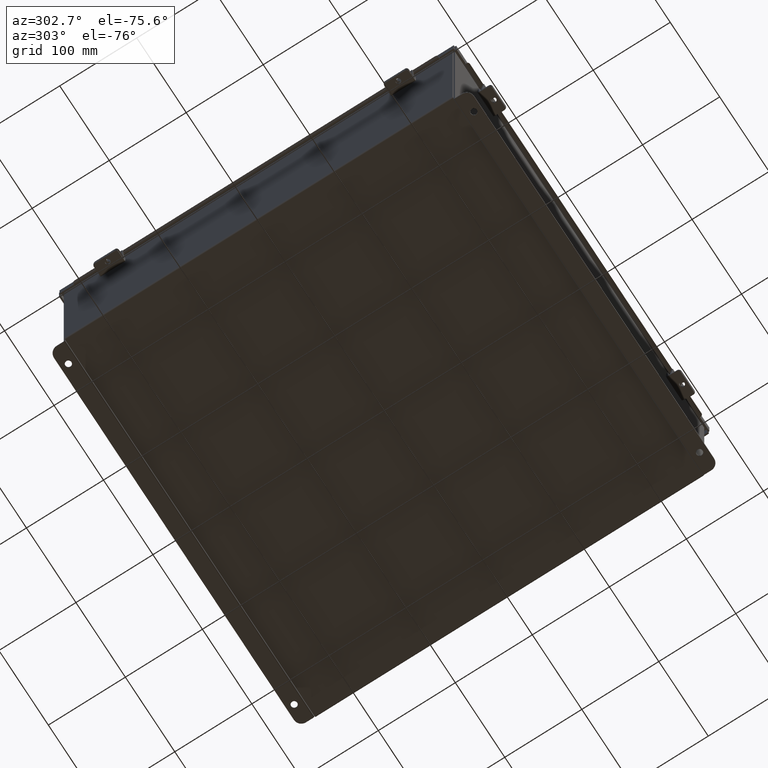
[diagram: clean part render]
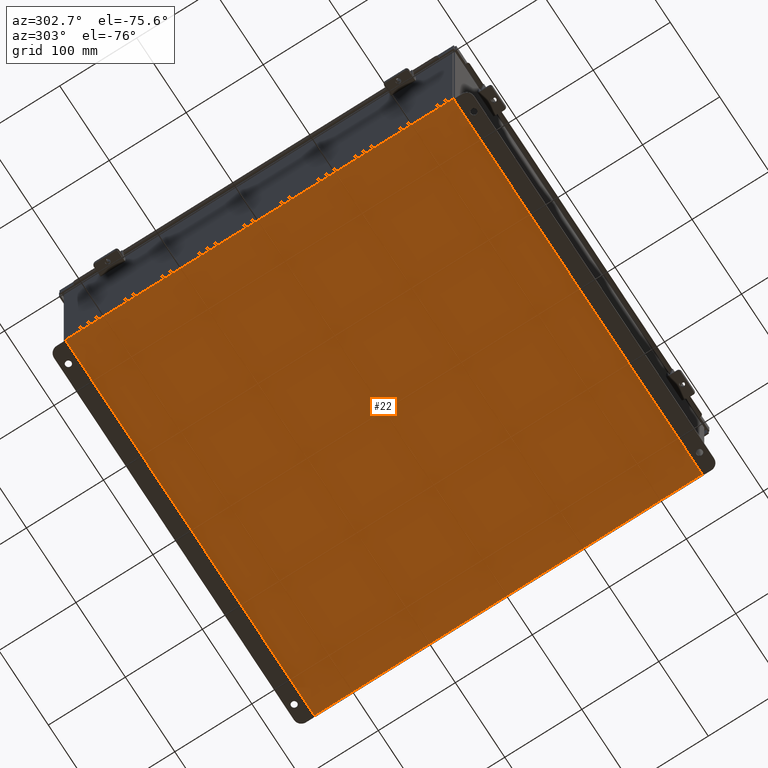
[diagram: same view with one face highlighted and labeled with its STEP entity id]
A machine part, auxiliary view. The second image highlights one B-rep face of the part: STEP entity #22.
In plain terms, the highlighted planar face has unit normal (0, 0, -1).
Its self-contained STEP definition (entity closure, byte-faithful):
#22 = ADVANCED_FACE ( 'NONE', ( #6597 ), #382, .T. ) ;
#375 = DIRECTION ( 'NONE',  ( -1.000000000000000000, -0.0000000000000000000, -0.0000000000000000000 ) ) ;
#382 = PLANE ( 'NONE',  #9697 ) ;
#411 = CARTESIAN_POINT ( 'NONE',  ( 9.912300000000001900, 9.925300000000001800, -0.07469999999999994700 ) ) ;
#457 = EDGE_CURVE ( 'NONE', #9458, #4602, #3333, .T. ) ;
#689 = DIRECTION ( 'NONE',  ( 0.0000000000000000000, 0.0000000000000000000, -1.000000000000000000 ) ) ;
#801 = EDGE_CURVE ( 'NONE', #9458, #4887, #6002, .T. ) ;
#1227 = CARTESIAN_POINT ( 'NONE',  ( -9.912299999999998300, -9.925299999999992900, -0.07469999999999994700 ) ) ;
#1737 = ORIENTED_EDGE ( 'NONE', *, *, #4054, .F. ) ;
#2460 = ORIENTED_EDGE ( 'NONE', *, *, #457, .T. ) ;
#3333 = LINE ( 'NONE', #3560, #4439 ) ;
#3560 = CARTESIAN_POINT ( 'NONE',  ( -9.912299999999998300, -9.925299999999998200, -0.07469999999999994700 ) ) ;
#3820 = ORIENTED_EDGE ( 'NONE', *, *, #801, .F. ) ;
#4054 = EDGE_CURVE ( 'NONE', #4187, #4602, #5068, .T. ) ;
#4173 = DIRECTION ( 'NONE',  ( 1.000000000000000000, 0.0000000000000000000, 0.0000000000000000000 ) ) ;
#4187 = VERTEX_POINT ( 'NONE', #8298 ) ;
#4313 = EDGE_CURVE ( 'NONE', #4187, #4887, #9565, .T. ) ;
#4439 = VECTOR ( 'NONE', #9403, 39.37007874015748100 ) ;
#4440 = DIRECTION ( 'NONE',  ( -0.0000000000000000000, -1.000000000000000000, -0.0000000000000000000 ) ) ;
#4514 = EDGE_LOOP ( 'NONE', ( #1737, #5165, #3820, #2460 ) ) ;
#4602 = VERTEX_POINT ( 'NONE', #6740 ) ;
#4833 = CARTESIAN_POINT ( 'NONE',  ( -9.999999999999998200, -9.925299999999998200, -0.07470000000000000300 ) ) ;
#4887 = VERTEX_POINT ( 'NONE', #6553 ) ;
#4939 = CARTESIAN_POINT ( 'NONE',  ( -9.999999999999998200, 9.925300000000001800, -0.07470000000000000300 ) ) ;
#4948 = CARTESIAN_POINT ( 'NONE',  ( 0.0000000000000000000, 0.0000000000000000000, -0.07470000000000000300 ) ) ;
#5068 = LINE ( 'NONE', #4939, #6605 ) ;
#5165 = ORIENTED_EDGE ( 'NONE', *, *, #4313, .T. ) ;
#6002 = LINE ( 'NONE', #4833, #8112 ) ;
#6553 = CARTESIAN_POINT ( 'NONE',  ( 9.912300000000001900, -9.925299999999998200, -0.07470000000000000300 ) ) ;
#6597 = FACE_OUTER_BOUND ( 'NONE', #4514, .T. ) ;
#6605 = VECTOR ( 'NONE', #375, 39.37007874015748100 ) ;
#6740 = CARTESIAN_POINT ( 'NONE',  ( -9.912299999999998300, 9.925300000000001800, -0.07470000000000000300 ) ) ;
#8112 = VECTOR ( 'NONE', #4173, 39.37007874015748100 ) ;
#8298 = CARTESIAN_POINT ( 'NONE',  ( 9.912300000000001900, 9.925299999999998200, -0.07469999999999994700 ) ) ;
#9403 = DIRECTION ( 'NONE',  ( -0.0000000000000000000, 1.000000000000000000, -0.0000000000000000000 ) ) ;
#9458 = VERTEX_POINT ( 'NONE', #1227 ) ;
#9565 = LINE ( 'NONE', #411, #9676 ) ;
#9571 = DIRECTION ( 'NONE',  ( -1.000000000000000000, 0.0000000000000000000, -0.0000000000000000000 ) ) ;
#9676 = VECTOR ( 'NONE', #4440, 39.37007874015748100 ) ;
#9697 = AXIS2_PLACEMENT_3D ( 'NONE', #4948, #689, #9571 ) ;